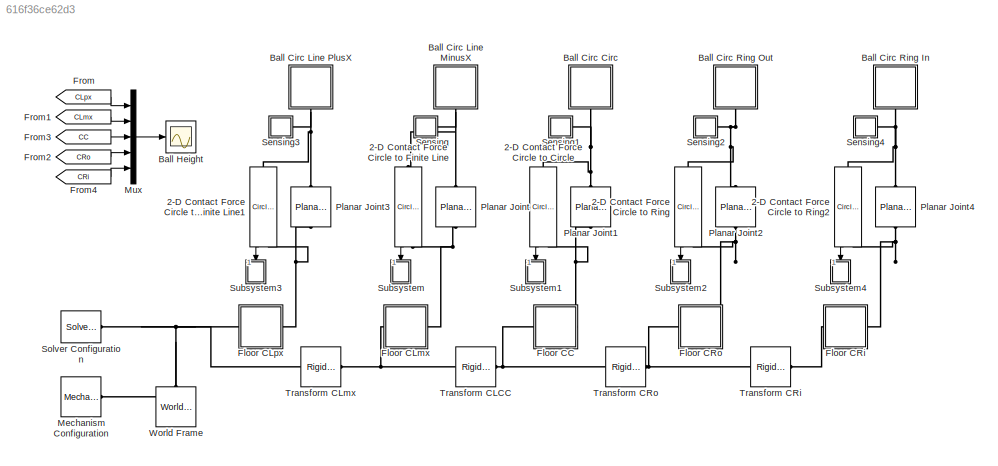
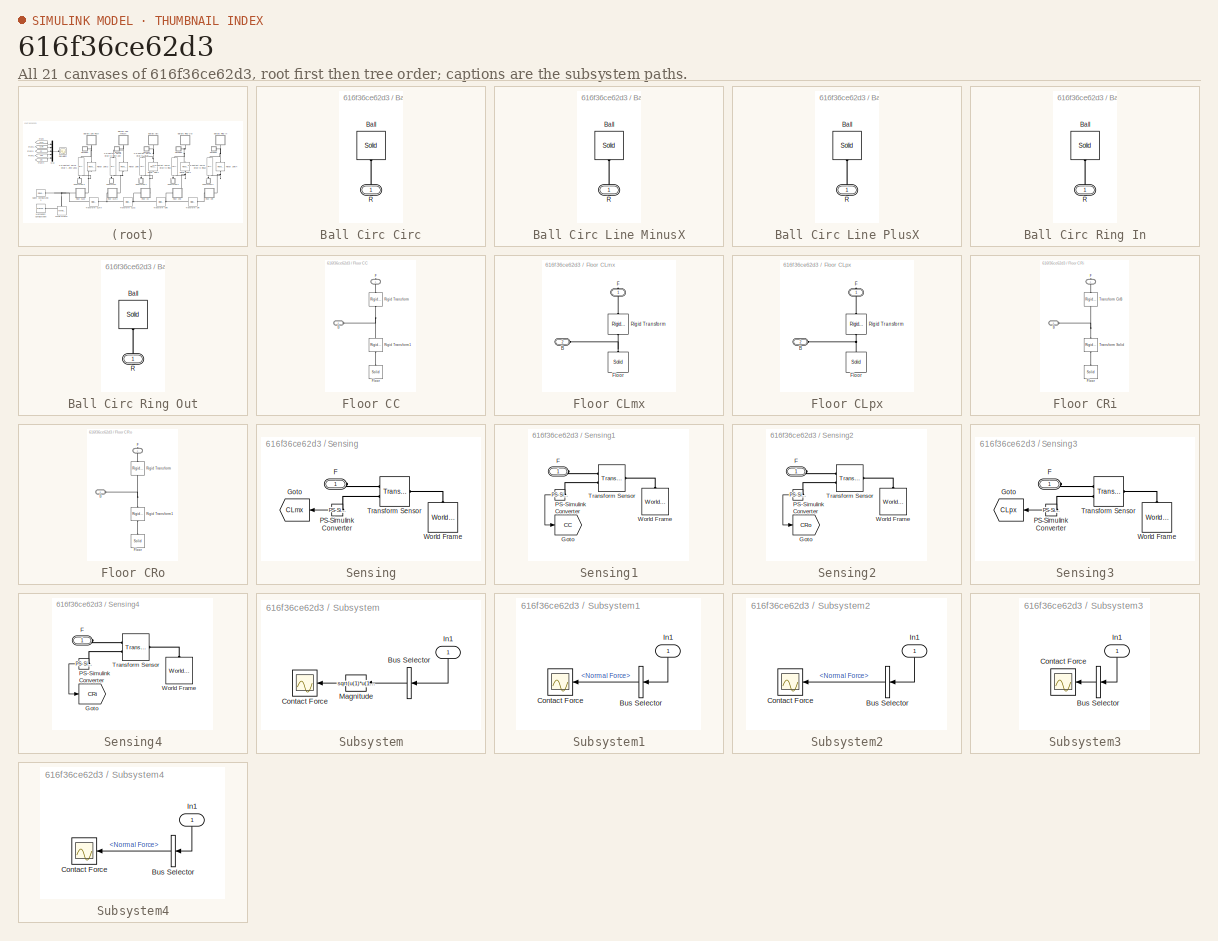
[diagram: thumbnail index - all 21 canvases of the model, root first then tree order]
MODEL slx_616f36ce62d3
KIND model
CONFIG AbsTol = 1e-8
CONFIG EnableMultiTasking = on
CONFIG FixedStep = auto
CONFIG MaxStep = 1e-3
CONFIG MinStep = auto
CONFIG PostLoadFcn = warning off Simulink:Engine:UsingDefaultMaxStepSize\n
CONFIG RelTol = 1e-8
CONFIG SampleTimeConstraint = Unconstrained
CONFIG Solver = ode15s
CONFIG SolverName = ode15s
CONFIG StartFcn = tic;
CONFIG StartTime = 0.0
CONFIG StopFcn = Elapsed_Sim_Time = toc;\ndisp(['Elapsed Sim Time = ' num2str(Elapsed_Sim_Time)]);\n
CONFIG StopTime = 5
BLOCK [Reference] 2-D Contact Force Circle to Circle  REF=Contact_Forces_Lib/2D/Circle to Circle Force
  Ports = [0, 1, 0, 0, 0, 1, 1]
  SourceBlock = Contact_Forces_Lib/2D/Circle to Circle Force
  SourceProductName = Simscape Multibody Contact Forces Library
  SourceType = Circle to Circle Force
BLOCK [Reference] 2-D Contact Force Circle to Finite Line  REF=Contact_Forces_Lib/2D/Circle to Finite Line Force
  Ports = [0, 1, 0, 0, 0, 1, 1]
  SourceBlock = Contact_Forces_Lib/2D/Circle to Finite Line Force
  SourceProductName = Simscape Multibody Contact Forces Library
  SourceType = Circle on Finite Line Force
BLOCK [Reference] 2-D Contact Force Circle to Finite Line1  REF=Contact_Forces_Lib/2D/Circle to Finite Line Force
  Ports = [0, 1, 0, 0, 0, 1, 1]
  SourceBlock = Contact_Forces_Lib/2D/Circle to Finite Line Force
  SourceProductName = Simscape Multibody Contact Forces Library
  SourceType = Circle on Finite Line Force
BLOCK [Reference] 2-D Contact Force Circle to Ring  REF=Contact_Forces_Lib/2D/Circle to Ring Force
  Ports = [0, 1, 0, 0, 0, 1, 1]
  SourceBlock = Contact_Forces_Lib/2D/Circle to Ring Force
  SourceProductName = Simscape Multibody Contact Forces Library
  SourceType = Circle to Ring Force
BLOCK [Reference] 2-D Contact Force Circle to Ring2  REF=Contact_Forces_Lib/2D/Circle to Ring Force
  Ports = [0, 1, 0, 0, 0, 1, 1]
  SourceBlock = Contact_Forces_Lib/2D/Circle to Ring Force
  SourceProductName = Simscape Multibody Contact Forces Library
  SourceType = Circle to Ring Force
BLOCK [SubSystem] Ball Circ Circ
  Ports = [0, 0, 0, 0, 0, 0, 1]
  RequestExecContextInheritance = off
BLOCK [Reference] Ball Circ Circ/Ball  REF=sm_lib/Body Elements/Solid
  Ports = [0, 0, 0, 0, 0, 0, 1]
  SourceBlock = sm_lib/Body Elements/Solid
  SourceProductBaseCode = MS
  SourceProductName = Simscape Multibody
  SourceType = Solid
BLOCK [PMIOPort] Ball Circ Circ/R
  Side = Right
BLOCK [SubSystem] Ball Circ Line MinusX
  Ports = [0, 0, 0, 0, 0, 0, 1]
  RequestExecContextInheritance = off
BLOCK [Reference] Ball Circ Line MinusX/Ball  REF=sm_lib/Body Elements/Solid
  Ports = [0, 0, 0, 0, 0, 0, 1]
  SourceBlock = sm_lib/Body Elements/Solid
  SourceProductBaseCode = MS
  SourceProductName = Simscape Multibody
  SourceType = Solid
BLOCK [PMIOPort] Ball Circ Line MinusX/R
  Side = Right
BLOCK [SubSystem] Ball Circ Line PlusX
  Ports = [0, 0, 0, 0, 0, 0, 1]
  RequestExecContextInheritance = off
BLOCK [Reference] Ball Circ Line PlusX/Ball  REF=sm_lib/Body Elements/Solid
  Ports = [0, 0, 0, 0, 0, 0, 1]
  SourceBlock = sm_lib/Body Elements/Solid
  SourceProductBaseCode = MS
  SourceProductName = Simscape Multibody
  SourceType = Solid
BLOCK [PMIOPort] Ball Circ Line PlusX/R
  Side = Right
BLOCK [SubSystem] Ball Circ Ring In
  Ports = [0, 0, 0, 0, 0, 0, 1]
  RequestExecContextInheritance = off
BLOCK [Reference] Ball Circ Ring In/Ball  REF=sm_lib/Body Elements/Solid
  Ports = [0, 0, 0, 0, 0, 0, 1]
  SourceBlock = sm_lib/Body Elements/Solid
  SourceProductBaseCode = MS
  SourceProductName = Simscape Multibody
  SourceType = Solid
BLOCK [PMIOPort] Ball Circ Ring In/R
  Side = Right
BLOCK [SubSystem] Ball Circ Ring Out
  Ports = [0, 0, 0, 0, 0, 0, 1]
  RequestExecContextInheritance = off
BLOCK [Reference] Ball Circ Ring Out/Ball  REF=sm_lib/Body Elements/Solid
  Ports = [0, 0, 0, 0, 0, 0, 1]
  SourceBlock = sm_lib/Body Elements/Solid
  SourceProductBaseCode = MS
  SourceProductName = Simscape Multibody
  SourceType = Solid
BLOCK [PMIOPort] Ball Circ Ring Out/R
  Side = Right
BLOCK [Scope] Ball Height
  Floating = off
  NumInputPorts = 1
  Ports = [1]
  ScopeSpecificationString = Simulink.scopes.TimeScopeBlockCfg('CurrentConfiguration', extmgr.ConfigurationSet(extmgr.Configuration('Core','General UI',true,'FigureColor',[0.501960784313725 0.501960784313725 0.501960784313725]),extmgr.Configuration('Core','Source UI',true),extmgr.Configuration('Sources','WiredSimulink',true,'DataLoggingVariableName','ScopeData2','DataLoggingSaveFormat','StructureWithTime','DataLoggingDecimati...<+2665ch>
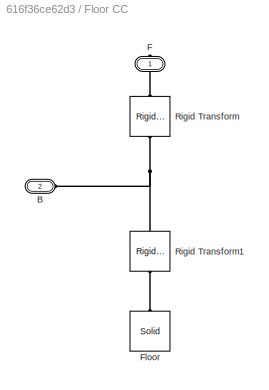
BLOCK [SubSystem] Floor CC
  Ports = [0, 0, 0, 0, 0, 1, 1]
  RequestExecContextInheritance = off
BLOCK [PMIOPort] Floor CC/B
  Port = 2
  Side = Left
BLOCK [PMIOPort] Floor CC/F
  Side = Right
BLOCK [Reference] Floor CC/Floor  REF=sm_lib/Body Elements/Solid
  Ports = [0, 0, 0, 0, 0, 0, 1]
  SourceBlock = sm_lib/Body Elements/Solid
  SourceProductBaseCode = MS
  SourceProductName = Simscape Multibody
  SourceType = Solid
BLOCK [Reference] Floor CC/Rigid Transform  REF=sm_lib/Frames and
Transforms/Rigid
Transform
  Ports = [0, 0, 0, 0, 0, 1, 1]
  SourceBlock = sm_lib/Frames and\nTransforms/Rigid\nTransform
  SourceProductBaseCode = MS
  SourceProductName = Simscape Multibody
  SourceType = Rigid\nTransform
BLOCK [Reference] Floor CC/Rigid Transform1  REF=sm_lib/Frames and
Transforms/Rigid
Transform
  Ports = [0, 0, 0, 0, 0, 1, 1]
  SourceBlock = sm_lib/Frames and\nTransforms/Rigid\nTransform
  SourceProductBaseCode = MS
  SourceProductName = Simscape Multibody
  SourceType = Rigid\nTransform
BLOCK [SubSystem] Floor CLmx
  Ports = [0, 0, 0, 0, 0, 1, 1]
  RequestExecContextInheritance = off
BLOCK [PMIOPort] Floor CLmx/B
  Port = 2
  Side = Left
BLOCK [PMIOPort] Floor CLmx/F
  Side = Right
BLOCK [Reference] Floor CLmx/Floor  REF=sm_lib/Body Elements/Solid
  Ports = [0, 0, 0, 0, 0, 0, 1]
  SourceBlock = sm_lib/Body Elements/Solid
  SourceProductBaseCode = MS
  SourceProductName = Simscape Multibody
  SourceType = Solid
BLOCK [Reference] Floor CLmx/Rigid Transform  REF=sm_lib/Frames and
Transforms/Rigid
Transform
  Ports = [0, 0, 0, 0, 0, 1, 1]
  SourceBlock = sm_lib/Frames and\nTransforms/Rigid\nTransform
  SourceProductBaseCode = MS
  SourceProductName = Simscape Multibody
  SourceType = Rigid\nTransform
BLOCK [SubSystem] Floor CLpx
  Ports = [0, 0, 0, 0, 0, 1, 1]
  RequestExecContextInheritance = off
BLOCK [PMIOPort] Floor CLpx/B
  Port = 2
  Side = Left
BLOCK [PMIOPort] Floor CLpx/F
  Side = Right
BLOCK [Reference] Floor CLpx/Floor  REF=sm_lib/Body Elements/Solid
  Ports = [0, 0, 0, 0, 0, 0, 1]
  SourceBlock = sm_lib/Body Elements/Solid
  SourceProductBaseCode = MS
  SourceProductName = Simscape Multibody
  SourceType = Solid
BLOCK [Reference] Floor CLpx/Rigid Transform  REF=sm_lib/Frames and
Transforms/Rigid
Transform
  Ports = [0, 0, 0, 0, 0, 1, 1]
  SourceBlock = sm_lib/Frames and\nTransforms/Rigid\nTransform
  SourceProductBaseCode = MS
  SourceProductName = Simscape Multibody
  SourceType = Rigid\nTransform
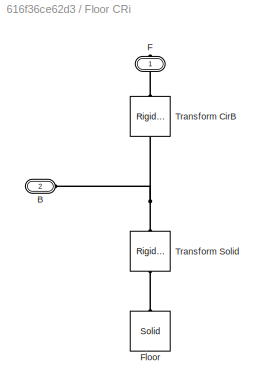
BLOCK [SubSystem] Floor CRi
  Ports = [0, 0, 0, 0, 0, 1, 1]
  RequestExecContextInheritance = off
BLOCK [PMIOPort] Floor CRi/B
  Port = 2
  Side = Left
BLOCK [PMIOPort] Floor CRi/F
  Side = Right
BLOCK [Reference] Floor CRi/Floor  REF=sm_lib/Body Elements/Solid
  Ports = [0, 0, 0, 0, 0, 0, 1]
  SourceBlock = sm_lib/Body Elements/Solid
  SourceProductBaseCode = MS
  SourceProductName = Simscape Multibody
  SourceType = Solid
BLOCK [Reference] Floor CRi/Transform CirB  REF=sm_lib/Frames and
Transforms/Rigid
Transform
  Ports = [0, 0, 0, 0, 0, 1, 1]
  SourceBlock = sm_lib/Frames and\nTransforms/Rigid\nTransform
  SourceProductBaseCode = MS
  SourceProductName = Simscape Multibody
  SourceType = Rigid\nTransform
BLOCK [Reference] Floor CRi/Transform Solid  REF=sm_lib/Frames and
Transforms/Rigid
Transform
  Ports = [0, 0, 0, 0, 0, 1, 1]
  SourceBlock = sm_lib/Frames and\nTransforms/Rigid\nTransform
  SourceProductBaseCode = MS
  SourceProductName = Simscape Multibody
  SourceType = Rigid\nTransform
BLOCK [SubSystem] Floor CRo
  Ports = [0, 0, 0, 0, 0, 1, 1]
  RequestExecContextInheritance = off
BLOCK [PMIOPort] Floor CRo/B
  Port = 2
  Side = Left
BLOCK [PMIOPort] Floor CRo/F
  Side = Right
BLOCK [Reference] Floor CRo/Floor  REF=sm_lib/Body Elements/Solid
  Ports = [0, 0, 0, 0, 0, 0, 1]
  SourceBlock = sm_lib/Body Elements/Solid
  SourceProductBaseCode = MS
  SourceProductName = Simscape Multibody
  SourceType = Solid
BLOCK [Reference] Floor CRo/Rigid Transform  REF=sm_lib/Frames and
Transforms/Rigid
Transform
  Ports = [0, 0, 0, 0, 0, 1, 1]
  SourceBlock = sm_lib/Frames and\nTransforms/Rigid\nTransform
  SourceProductBaseCode = MS
  SourceProductName = Simscape Multibody
  SourceType = Rigid\nTransform
BLOCK [Reference] Floor CRo/Rigid Transform1  REF=sm_lib/Frames and
Transforms/Rigid
Transform
  Ports = [0, 0, 0, 0, 0, 1, 1]
  SourceBlock = sm_lib/Frames and\nTransforms/Rigid\nTransform
  SourceProductBaseCode = MS
  SourceProductName = Simscape Multibody
  SourceType = Rigid\nTransform
BLOCK [From] From
  GotoTag = CLpx
  TagVisibility = global
BLOCK [From] From1
  GotoTag = CLmx
  TagVisibility = global
BLOCK [From] From2
  GotoTag = CRo
  TagVisibility = global
BLOCK [From] From3
  GotoTag = CC
  TagVisibility = global
BLOCK [From] From4
  GotoTag = CRi
  TagVisibility = global
BLOCK [Reference] Mechanism Configuration  REF=sm_lib/Utilities/Mechanism
Configuration
  Ports = [0, 0, 0, 0, 0, 0, 1]
  SourceBlock = sm_lib/Utilities/Mechanism\nConfiguration
  SourceProductBaseCode = MS
  SourceProductName = Simscape Multibody
  SourceType = Mechanism\nConfiguration
BLOCK [Mux] Mux
  DisplayOption = bar
  Inputs = 5
  Ports = [5, 1]
BLOCK [Reference] Planar Joint  REF=sm_lib/Joints/Planar Joint
  Ports = [0, 0, 0, 0, 0, 1, 1]
  SourceBlock = sm_lib/Joints/Planar Joint
  SourceProductBaseCode = MS
  SourceProductName = Simscape Multibody
  SourceType = Planar Joint
BLOCK [Reference] Planar Joint1  REF=sm_lib/Joints/Planar Joint
  Ports = [0, 0, 0, 0, 0, 1, 1]
  SourceBlock = sm_lib/Joints/Planar Joint
  SourceProductBaseCode = MS
  SourceProductName = Simscape Multibody
  SourceType = Planar Joint
BLOCK [Reference] Planar Joint2  REF=sm_lib/Joints/Planar Joint
  Ports = [0, 0, 0, 0, 0, 1, 1]
  SourceBlock = sm_lib/Joints/Planar Joint
  SourceProductBaseCode = MS
  SourceProductName = Simscape Multibody
  SourceType = Planar Joint
BLOCK [Reference] Planar Joint3  REF=sm_lib/Joints/Planar Joint
  Ports = [0, 0, 0, 0, 0, 1, 1]
  SourceBlock = sm_lib/Joints/Planar Joint
  SourceProductBaseCode = MS
  SourceProductName = Simscape Multibody
  SourceType = Planar Joint
BLOCK [Reference] Planar Joint4  REF=sm_lib/Joints/Planar Joint
  Ports = [0, 0, 0, 0, 0, 1, 1]
  SourceBlock = sm_lib/Joints/Planar Joint
  SourceProductBaseCode = MS
  SourceProductName = Simscape Multibody
  SourceType = Planar Joint
BLOCK [SubSystem] Sensing
  Ports = [0, 0, 0, 0, 0, 1]
  RequestExecContextInheritance = off
BLOCK [PMIOPort] Sensing/F
  Side = Left
BLOCK [Goto] Sensing/Goto
  GotoTag = CLmx
  TagVisibility = global
BLOCK [Reference] Sensing/PS-Simulink Converter  REF=nesl_utility/PS-Simulink
Converter
  Ports = [0, 1, 0, 0, 0, 1]
  SourceBlock = nesl_utility/PS-Simulink\nConverter
  SourceProductBaseCode = SS
  SourceProductName = Simscape
  SourceType = PS-Simulink\nConverter
BLOCK [Reference] Sensing/Transform Sensor  REF=sm_lib/Frames and
Transforms/Transform
Sensor
  Ports = [0, 0, 0, 0, 0, 1, 2]
  SourceBlock = sm_lib/Frames and\nTransforms/Transform\nSensor
  SourceProductBaseCode = MS
  SourceProductName = Simscape Multibody
  SourceType = Transform\nSensor
BLOCK [Reference] Sensing/World Frame  REF=sm_lib/Frames and
Transforms/World Frame
  Ports = [0, 0, 0, 0, 0, 0, 1]
  SourceBlock = sm_lib/Frames and\nTransforms/World Frame
  SourceProductBaseCode = MS
  SourceProductName = Simscape Multibody
  SourceType = World Frame
BLOCK [SubSystem] Sensing1
  Ports = [0, 0, 0, 0, 0, 1]
  RequestExecContextInheritance = off
BLOCK [PMIOPort] Sensing1/F
  Side = Left
BLOCK [Goto] Sensing1/Goto
  GotoTag = CC
  TagVisibility = global
BLOCK [Reference] Sensing1/PS-Simulink Converter  REF=nesl_utility/PS-Simulink
Converter
  Ports = [0, 1, 0, 0, 0, 1]
  SourceBlock = nesl_utility/PS-Simulink\nConverter
  SourceProductBaseCode = SS
  SourceProductName = Simscape
  SourceType = PS-Simulink\nConverter
BLOCK [Reference] Sensing1/Transform Sensor  REF=sm_lib/Frames and
Transforms/Transform
Sensor
  Ports = [0, 0, 0, 0, 0, 1, 2]
  SourceBlock = sm_lib/Frames and\nTransforms/Transform\nSensor
  SourceProductBaseCode = MS
  SourceProductName = Simscape Multibody
  SourceType = Transform\nSensor
BLOCK [Reference] Sensing1/World Frame  REF=sm_lib/Frames and
Transforms/World Frame
  Ports = [0, 0, 0, 0, 0, 0, 1]
  SourceBlock = sm_lib/Frames and\nTransforms/World Frame
  SourceProductBaseCode = MS
  SourceProductName = Simscape Multibody
  SourceType = World Frame
BLOCK [SubSystem] Sensing2
  Ports = [0, 0, 0, 0, 0, 1]
  RequestExecContextInheritance = off
BLOCK [PMIOPort] Sensing2/F
  Side = Left
BLOCK [Goto] Sensing2/Goto
  GotoTag = CRo
  TagVisibility = global
BLOCK [Reference] Sensing2/PS-Simulink Converter  REF=nesl_utility/PS-Simulink
Converter
  Ports = [0, 1, 0, 0, 0, 1]
  SourceBlock = nesl_utility/PS-Simulink\nConverter
  SourceProductBaseCode = SS
  SourceProductName = Simscape
  SourceType = PS-Simulink\nConverter
BLOCK [Reference] Sensing2/Transform Sensor  REF=sm_lib/Frames and
Transforms/Transform
Sensor
  Ports = [0, 0, 0, 0, 0, 1, 2]
  SourceBlock = sm_lib/Frames and\nTransforms/Transform\nSensor
  SourceProductBaseCode = MS
  SourceProductName = Simscape Multibody
  SourceType = Transform\nSensor
BLOCK [Reference] Sensing2/World Frame  REF=sm_lib/Frames and
Transforms/World Frame
  Ports = [0, 0, 0, 0, 0, 0, 1]
  SourceBlock = sm_lib/Frames and\nTransforms/World Frame
  SourceProductBaseCode = MS
  SourceProductName = Simscape Multibody
  SourceType = World Frame
BLOCK [SubSystem] Sensing3
  Ports = [0, 0, 0, 0, 0, 1]
  RequestExecContextInheritance = off
BLOCK [PMIOPort] Sensing3/F
  Side = Left
BLOCK [Goto] Sensing3/Goto
  GotoTag = CLpx
  TagVisibility = global
BLOCK [Reference] Sensing3/PS-Simulink Converter  REF=nesl_utility/PS-Simulink
Converter
  Ports = [0, 1, 0, 0, 0, 1]
  SourceBlock = nesl_utility/PS-Simulink\nConverter
  SourceProductBaseCode = SS
  SourceProductName = Simscape
  SourceType = PS-Simulink\nConverter
BLOCK [Reference] Sensing3/Transform Sensor  REF=sm_lib/Frames and
Transforms/Transform
Sensor
  Ports = [0, 0, 0, 0, 0, 1, 2]
  SourceBlock = sm_lib/Frames and\nTransforms/Transform\nSensor
  SourceProductBaseCode = MS
  SourceProductName = Simscape Multibody
  SourceType = Transform\nSensor
BLOCK [Reference] Sensing3/World Frame  REF=sm_lib/Frames and
Transforms/World Frame
  Ports = [0, 0, 0, 0, 0, 0, 1]
  SourceBlock = sm_lib/Frames and\nTransforms/World Frame
  SourceProductBaseCode = MS
  SourceProductName = Simscape Multibody
  SourceType = World Frame
BLOCK [SubSystem] Sensing4
  Ports = [0, 0, 0, 0, 0, 1]
  RequestExecContextInheritance = off
BLOCK [PMIOPort] Sensing4/F
  Side = Left
BLOCK [Goto] Sensing4/Goto
  GotoTag = CRi
  TagVisibility = global
BLOCK [Reference] Sensing4/PS-Simulink Converter  REF=nesl_utility/PS-Simulink
Converter
  Ports = [0, 1, 0, 0, 0, 1]
  SourceBlock = nesl_utility/PS-Simulink\nConverter
  SourceProductBaseCode = SS
  SourceProductName = Simscape
  SourceType = PS-Simulink\nConverter
BLOCK [Reference] Sensing4/Transform Sensor  REF=sm_lib/Frames and
Transforms/Transform
Sensor
  Ports = [0, 0, 0, 0, 0, 1, 2]
  SourceBlock = sm_lib/Frames and\nTransforms/Transform\nSensor
  SourceProductBaseCode = MS
  SourceProductName = Simscape Multibody
  SourceType = Transform\nSensor
BLOCK [Reference] Sensing4/World Frame  REF=sm_lib/Frames and
Transforms/World Frame
  Ports = [0, 0, 0, 0, 0, 0, 1]
  SourceBlock = sm_lib/Frames and\nTransforms/World Frame
  SourceProductBaseCode = MS
  SourceProductName = Simscape Multibody
  SourceType = World Frame
BLOCK [Reference] Solver Configuration  REF=nesl_utility/Solver
Configuration
  Ports = [0, 0, 0, 0, 0, 0, 1]
  SourceBlock = nesl_utility/Solver\nConfiguration
  SourceProductBaseCode = SS
  SourceProductName = Simscape
  SourceType = Solver\nConfiguration
BLOCK [SubSystem] Subsystem
  Ports = [1]
  RequestExecContextInheritance = off
BLOCK [BusSelector] Subsystem/Bus Selector
  OutputAsBus = on
  OutputSignals = FCir.Fy,FCir.Fx
  Ports = [1, 1]
BLOCK [Scope] Subsystem/Contact Force
  Floating = off
  NumInputPorts = 1
  Ports = [1]
  ScopeSpecificationString = C++SS(StrPVP('Location','[576, 427, 900, 666]'),StrPVP('Open','off'),MxPVP('AxesTitles',53,'struct(''axes1'',''%<SignalLabel>'')'),MxPVP('ScopeGraphics',56,'struct(''FigureColor'',''[0.501960784313725 0.501960784313725 0.501960784313725]'',''AxesColor'',''[0 0 0]'',''AxesTickColor'',''[1 1 1]'',''LineColors'',''[1 1 0;1 0 1;0 1 1;1 0 0;0 1 0;0 0 1]'',''LineStyles'',''-|-|-|-|-|-'',''LineWidths'','...<+361ch>  <repeated x4 — deduplicated; at blocks: Contact Force>
BLOCK [Inport] Subsystem/In1
  IconDisplay = Port number
BLOCK [Fcn] Subsystem/Magnitude
  Expr = sqrt(u(1)*u(1)+u(2)*u(2))
BLOCK [SubSystem] Subsystem1
  Ports = [1]
  RequestExecContextInheritance = off
BLOCK [BusSelector] Subsystem1/Bus Selector
  OutputAsBus = off
  OutputSignals = Normal Force
  Ports = [1, 1]
BLOCK [Scope] Subsystem1/Contact Force
  Floating = off
  NumInputPorts = 1
  Ports = [1]
  ScopeSpecificationString = C++SS(StrPVP('Location','[965, 424, 1289, 663]'),StrPVP('Open','off'),MxPVP('AxesTitles',53,'struct(''axes1'',''%<SignalLabel>'')'),MxPVP('ScopeGraphics',56,'struct(''FigureColor'',''[0.501960784313725 0.501960784313725 0.501960784313725]'',''AxesColor'',''[0 0 0]'',''AxesTickColor'',''[1 1 1]'',''LineColors'',''[1 1 0;1 0 1;0 1 1;1 0 0;0 1 0;0 0 1]'',''LineStyles'',''-|-|-|-|-|-'',''LineWidths'',...<+362ch>
BLOCK [Inport] Subsystem1/In1
  IconDisplay = Port number
BLOCK [SubSystem] Subsystem2
  Ports = [1]
  RequestExecContextInheritance = off
BLOCK [BusSelector] Subsystem2/Bus Selector
  OutputAsBus = off
  OutputSignals = Normal Force
  Ports = [1, 1]
BLOCK [Scope] Subsystem2/Contact Force
  Floating = off
  NumInputPorts = 1
  Ports = [1]
BLOCK [Inport] Subsystem2/In1
  IconDisplay = Port number
BLOCK [SubSystem] Subsystem3
  Ports = [1]
  RequestExecContextInheritance = off
BLOCK [BusSelector] Subsystem3/Bus Selector
  OutputAsBus = on
  OutputSignals = Normal Force
  Ports = [1, 1]
BLOCK [Scope] Subsystem3/Contact Force
  Floating = off
  NumInputPorts = 1
  Ports = [1]
BLOCK [Inport] Subsystem3/In1
  IconDisplay = Port number
BLOCK [SubSystem] Subsystem4
  Ports = [1]
  RequestExecContextInheritance = off
BLOCK [BusSelector] Subsystem4/Bus Selector
  OutputAsBus = off
  OutputSignals = Normal Force
  Ports = [1, 1]
BLOCK [Scope] Subsystem4/Contact Force
  Floating = off
  NumInputPorts = 1
  Ports = [1]
BLOCK [Inport] Subsystem4/In1
  IconDisplay = Port number
BLOCK [Reference] Transform CLCC  REF=sm_lib/Frames and
Transforms/Rigid
Transform
  Ports = [0, 0, 0, 0, 0, 1, 1]
  SourceBlock = sm_lib/Frames and\nTransforms/Rigid\nTransform
  SourceProductBaseCode = MS
  SourceProductName = Simscape Multibody
  SourceType = Rigid\nTransform
BLOCK [Reference] Transform CLmx  REF=sm_lib/Frames and
Transforms/Rigid
Transform
  Ports = [0, 0, 0, 0, 0, 1, 1]
  SourceBlock = sm_lib/Frames and\nTransforms/Rigid\nTransform
  SourceProductBaseCode = MS
  SourceProductName = Simscape Multibody
  SourceType = Rigid\nTransform
BLOCK [Reference] Transform CRi  REF=sm_lib/Frames and
Transforms/Rigid
Transform
  Ports = [0, 0, 0, 0, 0, 1, 1]
  SourceBlock = sm_lib/Frames and\nTransforms/Rigid\nTransform
  SourceProductBaseCode = MS
  SourceProductName = Simscape Multibody
  SourceType = Rigid\nTransform
BLOCK [Reference] Transform CRo  REF=sm_lib/Frames and
Transforms/Rigid
Transform
  Ports = [0, 0, 0, 0, 0, 1, 1]
  SourceBlock = sm_lib/Frames and\nTransforms/Rigid\nTransform
  SourceProductBaseCode = MS
  SourceProductName = Simscape Multibody
  SourceType = Rigid\nTransform
BLOCK [Reference] World Frame  REF=sm_lib/Frames and
Transforms/World Frame
  Ports = [0, 0, 0, 0, 0, 0, 1]
  SourceBlock = sm_lib/Frames and\nTransforms/World Frame
  SourceProductBaseCode = MS
  SourceProductName = Simscape Multibody
  SourceType = World Frame
LINE 2-D Contact Force Circle to Circle:1 -> Subsystem1:1
LINE 2-D Contact Force Circle to Finite Line1:1 -> Subsystem3:1
LINE 2-D Contact Force Circle to Finite Line:1 -> Subsystem:1
LINE 2-D Contact Force Circle to Ring2:1 -> Subsystem4:1
LINE 2-D Contact Force Circle to Ring:1 -> Subsystem2:1
LINE From1:1 -> Mux:2
LINE From2:1 -> Mux:4
LINE From3:1 -> Mux:3
LINE From4:1 -> Mux:5
LINE From:1 -> Mux:1
LINE Mux:1 -> Ball Height:1
LINE Sensing/PS-Simulink Converter:1 -> Sensing/Goto:1
LINE Sensing1/PS-Simulink Converter:1 -> Sensing1/Goto:1
LINE Sensing2/PS-Simulink Converter:1 -> Sensing2/Goto:1
LINE Sensing3/PS-Simulink Converter:1 -> Sensing3/Goto:1
LINE Sensing4/PS-Simulink Converter:1 -> Sensing4/Goto:1
LINE Subsystem/Bus Selector:1 -> Subsystem/Magnitude:1
LINE Subsystem/In1:1 -> Subsystem/Bus Selector:1
LINE Subsystem/Magnitude:1 -> Subsystem/Contact Force:1
LINE Subsystem1/Bus Selector:1 -> Subsystem1/Contact Force:1
LINE Subsystem1/In1:1 -> Subsystem1/Bus Selector:1
LINE Subsystem2/Bus Selector:1 -> Subsystem2/Contact Force:1
LINE Subsystem2/In1:1 -> Subsystem2/Bus Selector:1
LINE Subsystem3/Bus Selector:1 -> Subsystem3/Contact Force:1
LINE Subsystem3/In1:1 -> Subsystem3/Bus Selector:1
LINE Subsystem4/Bus Selector:1 -> Subsystem4/Contact Force:1
LINE Subsystem4/In1:1 -> Subsystem4/Bus Selector:1
PNET net1: 2-D Contact Force Circle to Circle:LConn1 -- Ball Circ Circ:RConn1 -- Planar Joint1:RConn1 -- Sensing1:LConn1
PNET net2: 2-D Contact Force Circle to Circle:RConn1 -- Floor CC:RConn1 -- Planar Joint1:LConn1
PNET net3: 2-D Contact Force Circle to Finite Line1:LConn1 -- Ball Circ Line PlusX:RConn1 -- Planar Joint3:RConn1 -- Sensing3:LConn1
PNET net4: 2-D Contact Force Circle to Finite Line1:RConn1 -- Floor CLpx:RConn1 -- Planar Joint3:LConn1
PNET net5: 2-D Contact Force Circle to Finite Line:LConn1 -- Ball Circ Line MinusX:RConn1 -- Planar Joint:RConn1 -- Sensing:LConn1
PNET net6: 2-D Contact Force Circle to Finite Line:RConn1 -- Floor CLmx:RConn1 -- Planar Joint:LConn1
PNET net7: 2-D Contact Force Circle to Ring2:LConn1 -- Ball Circ Ring In:RConn1 -- Planar Joint4:RConn1 -- Sensing4:LConn1
PNET net8: 2-D Contact Force Circle to Ring2:RConn1 -- Floor CRi:RConn1 -- Planar Joint4:LConn1
PNET net9: 2-D Contact Force Circle to Ring:LConn1 -- Ball Circ Ring Out:RConn1 -- Planar Joint2:RConn1 -- Sensing2:LConn1
PNET net10: 2-D Contact Force Circle to Ring:RConn1 -- Floor CRo:RConn1 -- Planar Joint2:LConn1
PLINE Ball Circ Circ/Ball:RConn1 -- Ball Circ Circ/R:RConn1
PLINE Ball Circ Line MinusX/Ball:RConn1 -- Ball Circ Line MinusX/R:RConn1
PLINE Ball Circ Line PlusX/Ball:RConn1 -- Ball Circ Line PlusX/R:RConn1
PLINE Ball Circ Ring In/Ball:RConn1 -- Ball Circ Ring In/R:RConn1
PLINE Ball Circ Ring Out/Ball:RConn1 -- Ball Circ Ring Out/R:RConn1
PNET net11: Floor CC/B:RConn1 -- Floor CC/Rigid Transform1:LConn1 -- Floor CC/Rigid Transform:LConn1
PLINE Floor CC/F:RConn1 -- Floor CC/Rigid Transform:RConn1
PLINE Floor CC/Floor:RConn1 -- Floor CC/Rigid Transform1:RConn1
PNET net12: Floor CC:LConn1 -- Transform CLCC:RConn1 -- Transform CRo:LConn1
PNET net13: Floor CLmx/B:RConn1 -- Floor CLmx/Floor:RConn1 -- Floor CLmx/Rigid Transform:LConn1
PLINE Floor CLmx/F:RConn1 -- Floor CLmx/Rigid Transform:RConn1
PNET net14: Floor CLmx:LConn1 -- Transform CLCC:LConn1 -- Transform CLmx:RConn1
PNET net15: Floor CLpx/B:RConn1 -- Floor CLpx/Floor:RConn1 -- Floor CLpx/Rigid Transform:LConn1
PLINE Floor CLpx/F:RConn1 -- Floor CLpx/Rigid Transform:RConn1
PNET net16: Floor CLpx:LConn1 -- Mechanism Configuration:RConn1 -- Solver Configuration:RConn1 -- Transform CLmx:LConn1 -- World Frame:RConn1
PNET net17: Floor CRi/B:RConn1 -- Floor CRi/Transform CirB:LConn1 -- Floor CRi/Transform Solid:LConn1
PLINE Floor CRi/F:RConn1 -- Floor CRi/Transform CirB:RConn1
PLINE Floor CRi/Floor:RConn1 -- Floor CRi/Transform Solid:RConn1
PLINE Floor CRi:LConn1 -- Transform CRi:RConn1
PNET net18: Floor CRo/B:RConn1 -- Floor CRo/Rigid Transform1:LConn1 -- Floor CRo/Rigid Transform:LConn1
PLINE Floor CRo/F:RConn1 -- Floor CRo/Rigid Transform:RConn1
PLINE Floor CRo/Floor:RConn1 -- Floor CRo/Rigid Transform1:RConn1
PNET net19: Floor CRo:LConn1 -- Transform CRi:LConn1 -- Transform CRo:RConn1
PLINE Sensing/F:RConn1 -- Sensing/Transform Sensor:RConn1
PLINE Sensing/PS-Simulink Converter:LConn1 -- Sensing/Transform Sensor:RConn2
PLINE Sensing/Transform Sensor:LConn1 -- Sensing/World Frame:RConn1
PLINE Sensing1/F:RConn1 -- Sensing1/Transform Sensor:RConn1
PLINE Sensing1/PS-Simulink Converter:LConn1 -- Sensing1/Transform Sensor:RConn2
PLINE Sensing1/Transform Sensor:LConn1 -- Sensing1/World Frame:RConn1
PLINE Sensing2/F:RConn1 -- Sensing2/Transform Sensor:RConn1
PLINE Sensing2/PS-Simulink Converter:LConn1 -- Sensing2/Transform Sensor:RConn2
PLINE Sensing2/Transform Sensor:LConn1 -- Sensing2/World Frame:RConn1
PLINE Sensing3/F:RConn1 -- Sensing3/Transform Sensor:RConn1
PLINE Sensing3/PS-Simulink Converter:LConn1 -- Sensing3/Transform Sensor:RConn2
PLINE Sensing3/Transform Sensor:LConn1 -- Sensing3/World Frame:RConn1
PLINE Sensing4/F:RConn1 -- Sensing4/Transform Sensor:RConn1
PLINE Sensing4/PS-Simulink Converter:LConn1 -- Sensing4/Transform Sensor:RConn2
PLINE Sensing4/Transform Sensor:LConn1 -- Sensing4/World Frame:RConn1
note: PNET lines group multi-terminal physical nets as a canonical sorted terminal list (undirected conserving connections); 2-terminal nets keep the pairwise PLINE form
